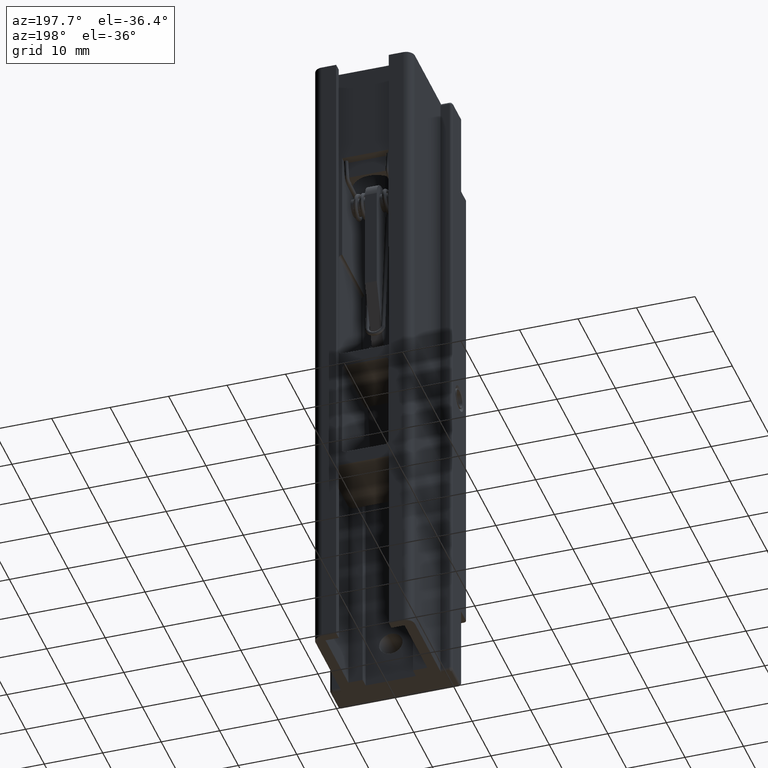
[diagram: clean part render]
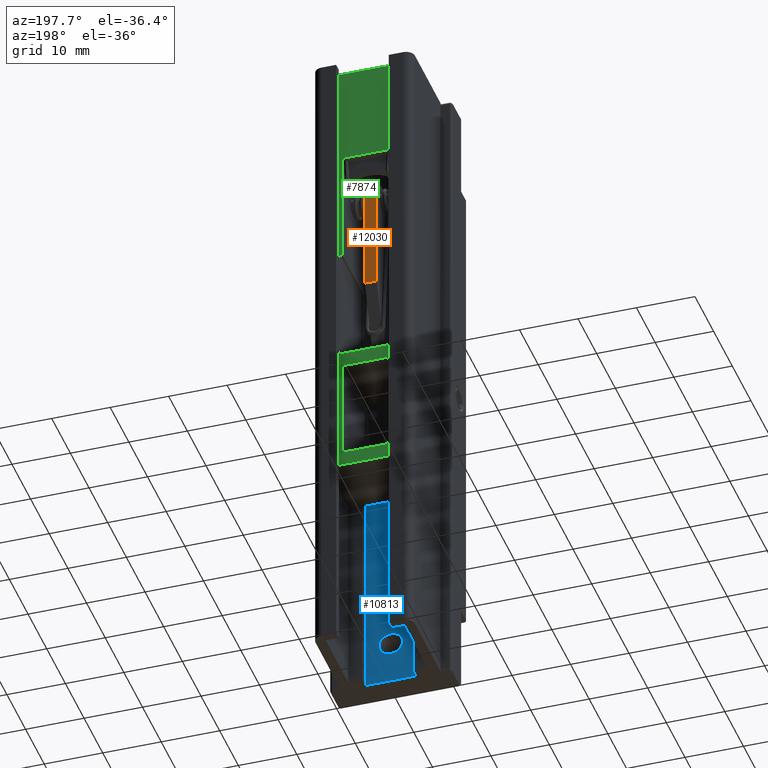
[diagram: same view with three faces highlighted in distinct colors, each labeled with its STEP entity id]
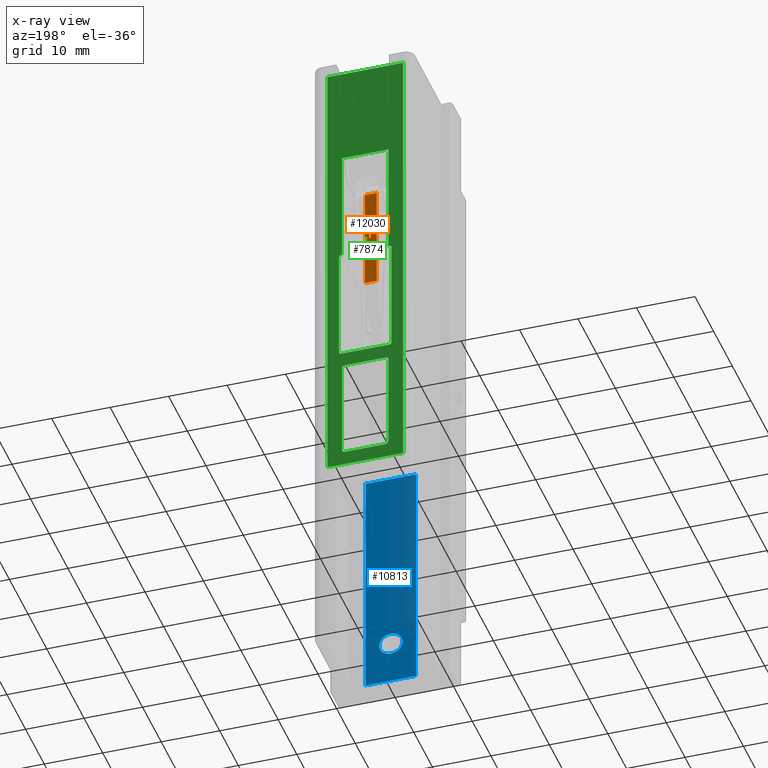
[diagram: x-ray of the same camera — body ghosted, the three highlighted faces saturated]
A machine part, auxiliary view with three faces highlighted in distinct colors.
The next image is the same camera in x-ray (body ghosted, the three faces saturated) — at least one of them is partly hidden behind the body in this view.
Their STEP definitions:

[orange] entity #12030 — the highlighted face is a freeform B-spline surface patch.
#11980=CARTESIAN_POINT('',(-1.0,3.0,15.698478499999901));
#11981=VERTEX_POINT('',#11980);
#11987=CARTESIAN_POINT('',(1.0,3.0,15.698478499999901));
#11988=VERTEX_POINT('',#11987);
#11989=CARTESIAN_POINT('',(1.0,3.0,15.698478499999901));
#11990=CARTESIAN_POINT('',(-1.0,3.0,15.698478499999901));
#11991=QUASI_UNIFORM_CURVE('',1,(#11989,#11990),.UNSPECIFIED.,.F.,.U.);
#11992=EDGE_CURVE('',#11988,#11981,#11991,.T.);
#12003=CARTESIAN_POINT('',(-1.099899996123612,3.0,34.389185964422197));
#12004=CARTESIAN_POINT('',(-1.099899996123612,3.0,14.809292058103690));
#12005=CARTESIAN_POINT('',(1.099900049767792,3.0,34.389185964422197));
#12006=CARTESIAN_POINT('',(1.099900049767792,3.0,14.809292058103690));
#12007=B_SPLINE_SURFACE_WITH_KNOTS('',1,1,((#12003,#12005),(#12004,#12006)),.UNSPECIFIED.,.F.,.F.,.U.,(2,2),(2,2),(0.0,19.579893906318510),(0.0,2.199800045891404),.UNSPECIFIED.);
#12008=CARTESIAN_POINT('',(-1.0,3.0,33.500000000000000));
#12009=VERTEX_POINT('',#12008);
#12010=CARTESIAN_POINT('',(-1.0,3.0,15.698478499999901));
#12011=CARTESIAN_POINT('',(-1.0,3.0,33.500000000000000));
#12012=QUASI_UNIFORM_CURVE('',1,(#12010,#12011),.UNSPECIFIED.,.F.,.U.);
#12013=EDGE_CURVE('',#11981,#12009,#12012,.T.);
#12014=ORIENTED_EDGE('',*,*,#12013,.T.);
#12015=CARTESIAN_POINT('',(1.0,3.0,33.500000000000000));
#12016=VERTEX_POINT('',#12015);
#12017=CARTESIAN_POINT('',(1.0,3.0,33.500000000000000));
#12018=CARTESIAN_POINT('',(-1.0,3.0,33.500000000000000));
#12019=QUASI_UNIFORM_CURVE('',1,(#12017,#12018),.UNSPECIFIED.,.F.,.U.);
#12020=EDGE_CURVE('',#12016,#12009,#12019,.T.);
#12021=ORIENTED_EDGE('',*,*,#12020,.F.);
#12022=CARTESIAN_POINT('',(1.0,3.0,15.698478499999901));
#12023=CARTESIAN_POINT('',(1.0,3.0,33.500000000000000));
#12024=QUASI_UNIFORM_CURVE('',1,(#12022,#12023),.UNSPECIFIED.,.F.,.U.);
#12025=EDGE_CURVE('',#11988,#12016,#12024,.T.);
#12026=ORIENTED_EDGE('',*,*,#12025,.F.);
#12027=ORIENTED_EDGE('',*,*,#11992,.T.);
#12028=EDGE_LOOP('',(#12014,#12021,#12026,#12027));
#12029=FACE_OUTER_BOUND('',#12028,.T.);
#12030=ADVANCED_FACE('',(#12029),#12007,.F.);

[blue] entity #10813 — the highlighted face is a freeform B-spline surface patch.
#8842=CARTESIAN_POINT('',(1.996269596838308,-7.700000000000150,-50.122097079158408));
#8843=VERTEX_POINT('',#8842);
#8849=CARTESIAN_POINT('',(0.0,-7.700000000000150,-52.000000000000007));
#8850=VERTEX_POINT('',#8849);
#8851=CARTESIAN_POINT('',(0.0,-7.700000000000150,-52.000000000000007));
#8852=CARTESIAN_POINT('',(1.881412133643885,-7.700000000000149,-52.000000000000028));
#8853=CARTESIAN_POINT('',(1.996269596838308,-7.700000000000150,-50.122097079158408));
#8861=(BOUNDED_CURVE()B_SPLINE_CURVE(2,(#8851,#8852,#8853),.UNSPECIFIED.,.F.,.U.)B_SPLINE_CURVE_WITH_KNOTS((3,3),(0.500000000000000,0.739332962226635),.UNSPECIFIED.)CURVE()GEOMETRIC_REPRESENTATION_ITEM()RATIONAL_B_SPLINE_CURVE((1.0,0.719603993301130,0.976072041640339))REPRESENTATION_ITEM(''));
#8862=EDGE_CURVE('',#8850,#8843,#8861,.T.);
#8864=CARTESIAN_POINT('',(-1.986019044598978,-7.700000000000149,-49.763931462303511));
#8865=VERTEX_POINT('',#8864);
#8866=CARTESIAN_POINT('',(-1.986019044598978,-7.700000000000149,-49.763931462303503));
#8867=CARTESIAN_POINT('',(-2.000000000000000,-7.700000000000149,-49.881551691590275));
#8868=CARTESIAN_POINT('',(-2.0,-7.700000000000150,-50.0));
#8869=CARTESIAN_POINT('',(-2.000000000000000,-7.700000000000150,-52.000000000000007));
#8870=CARTESIAN_POINT('',(0.0,-7.700000000000150,-52.000000000000007));
#8878=(BOUNDED_CURVE()B_SPLINE_CURVE(2,(#8866,#8867,#8868,#8869,#8870),.UNSPECIFIED.,.F.,.U.)B_SPLINE_CURVE_WITH_KNOTS((3,2,3),(0.229562461877343,0.250000000000000,0.500000000000000),.UNSPECIFIED.)CURVE()GEOMETRIC_REPRESENTATION_ITEM()RATIONAL_B_SPLINE_CURVE((0.956026731376340,0.976055934698529,1.0,0.707106781186548,1.0))REPRESENTATION_ITEM(''));
#8879=EDGE_CURVE('',#8865,#8850,#8878,.T.);
#8923=CARTESIAN_POINT('',(0.0,-7.700000000000150,-48.0));
#8924=VERTEX_POINT('',#8923);
#8925=CARTESIAN_POINT('',(0.0,-7.700000000000150,-48.0));
#8926=CARTESIAN_POINT('',(-1.776348928714444,-7.700000000000150,-48.000000000000007));
#8927=CARTESIAN_POINT('',(-1.986019044598978,-7.700000000000149,-49.763931462303511));
#8935=(BOUNDED_CURVE()B_SPLINE_CURVE(2,(#8925,#8926,#8927),.UNSPECIFIED.,.F.,.U.)B_SPLINE_CURVE_WITH_KNOTS((3,3),(0.0,0.229562461877343),.UNSPECIFIED.)CURVE()GEOMETRIC_REPRESENTATION_ITEM()RATIONAL_B_SPLINE_CURVE((1.0,0.731050846488018,0.956026731376340))REPRESENTATION_ITEM(''));
#8936=EDGE_CURVE('',#8924,#8865,#8935,.T.);
#8938=CARTESIAN_POINT('',(1.996269596838308,-7.700000000000150,-50.122097079158408));
#8939=CARTESIAN_POINT('',(2.0,-7.700000000000149,-50.061105526686127));
#8940=CARTESIAN_POINT('',(2.0,-7.700000000000150,-50.0));
#8941=CARTESIAN_POINT('',(2.000000000000000,-7.700000000000150,-48.000000000000014));
#8942=CARTESIAN_POINT('',(0.0,-7.700000000000150,-48.0));
#8950=(BOUNDED_CURVE()B_SPLINE_CURVE(2,(#8938,#8939,#8940,#8941,#8942),.UNSPECIFIED.,.F.,.U.)B_SPLINE_CURVE_WITH_KNOTS((3,2,3),(0.739332962226635,0.750000000000000,1.0),.UNSPECIFIED.)CURVE()GEOMETRIC_REPRESENTATION_ITEM()RATIONAL_B_SPLINE_CURVE((0.976072041640339,0.987502787885417,1.0,0.707106781186548,1.0))REPRESENTATION_ITEM(''));
#8951=EDGE_CURVE('',#8843,#8924,#8950,.T.);
#10015=CARTESIAN_POINT('',(-4.300000000000110,-7.700000000000000,-16.699999999999999));
#10016=VERTEX_POINT('',#10015);
#10023=CARTESIAN_POINT('',(4.300000000000000,-7.700000000000000,-16.699999999999999));
#10024=VERTEX_POINT('',#10023);
#10030=CARTESIAN_POINT('',(-4.300000000000110,-7.700000000000000,-16.699999999999999));
#10031=CARTESIAN_POINT('',(4.300000000000000,-7.700000000000000,-16.699999999999999));
#10032=QUASI_UNIFORM_CURVE('',1,(#10030,#10031),.UNSPECIFIED.,.F.,.U.);
#10033=EDGE_CURVE('',#10016,#10024,#10032,.T.);
#10719=CARTESIAN_POINT('',(4.300000000000000,-7.700000000000000,-57.500000000000000));
#10720=VERTEX_POINT('',#10719);
#10721=CARTESIAN_POINT('',(4.300000000000000,-7.700000000000000,-57.500000000000000));
#10722=CARTESIAN_POINT('',(4.300000000000000,-7.700000000000000,-16.699999999999999));
#10723=QUASI_UNIFORM_CURVE('',1,(#10721,#10722),.UNSPECIFIED.,.F.,.U.);
#10724=EDGE_CURVE('',#10720,#10024,#10723,.T.);
#10786=CARTESIAN_POINT('',(-4.729570225523588,-7.700000000000000,-14.662040845080741));
#10787=CARTESIAN_POINT('',(-4.729570225523588,-7.700000000000000,-59.537960978821403));
#10788=CARTESIAN_POINT('',(4.729570225523478,-7.700000000000000,-14.662040845080741));
#10789=CARTESIAN_POINT('',(4.729570225523478,-7.700000000000000,-59.537960978821403));
#10790=B_SPLINE_SURFACE_WITH_KNOTS('',1,1,((#10786,#10788),(#10787,#10789)),.UNSPECIFIED.,.F.,.F.,.U.,(2,2),(2,2),(0.0,44.875920133740657),(0.0,9.459140451047066),.UNSPECIFIED.);
#10791=CARTESIAN_POINT('',(-4.300000000000110,-7.700000000000000,-57.500000000000000));
#10792=VERTEX_POINT('',#10791);
#10793=CARTESIAN_POINT('',(-4.300000000000110,-7.700000000000000,-57.500000000000000));
#10794=CARTESIAN_POINT('',(-4.300000000000110,-7.700000000000000,-16.699999999999999));
#10795=QUASI_UNIFORM_CURVE('',1,(#10793,#10794),.UNSPECIFIED.,.F.,.U.);
#10796=EDGE_CURVE('',#10792,#10016,#10795,.T.);
#10797=ORIENTED_EDGE('',*,*,#10796,.T.);
#10798=ORIENTED_EDGE('',*,*,#10033,.T.);
#10799=ORIENTED_EDGE('',*,*,#10724,.F.);
#10800=CARTESIAN_POINT('',(-4.300000000000110,-7.700000000000000,-57.500000000000000));
#10801=CARTESIAN_POINT('',(4.300000000000000,-7.700000000000000,-57.500000000000000));
#10802=QUASI_UNIFORM_CURVE('',1,(#10800,#10801),.UNSPECIFIED.,.F.,.U.);
#10803=EDGE_CURVE('',#10792,#10720,#10802,.T.);
#10804=ORIENTED_EDGE('',*,*,#10803,.F.);
#10805=EDGE_LOOP('',(#10797,#10798,#10799,#10804));
#10806=FACE_OUTER_BOUND('',#10805,.T.);
#10807=ORIENTED_EDGE('',*,*,#8862,.T.);
#10808=ORIENTED_EDGE('',*,*,#8951,.T.);
#10809=ORIENTED_EDGE('',*,*,#8936,.T.);
#10810=ORIENTED_EDGE('',*,*,#8879,.T.);
#10811=EDGE_LOOP('',(#10807,#10808,#10809,#10810));
#10812=FACE_BOUND('',#10811,.T.);
#10813=ADVANCED_FACE('',(#10806,#10812),#10790,.F.);

[green] entity #7874 — the highlighted face is a freeform B-spline surface patch.
#6790=CARTESIAN_POINT('',(3.950000000000000,6.0,39.500000000000000));
#6791=VERTEX_POINT('',#6790);
#6798=CARTESIAN_POINT('',(-3.950000000000000,6.0,39.500000000000000));
#6799=VERTEX_POINT('',#6798);
#6805=CARTESIAN_POINT('',(3.950000000000000,6.0,39.500000000000000));
#6806=CARTESIAN_POINT('',(-3.950000000000000,6.0,39.500000000000000));
#6807=QUASI_UNIFORM_CURVE('',1,(#6805,#6806),.UNSPECIFIED.,.F.,.U.);
#6808=EDGE_CURVE('',#6791,#6799,#6807,.T.);
#6846=CARTESIAN_POINT('',(3.449999999999875,6.0,-2.500000000000000));
#6847=VERTEX_POINT('',#6846);
#6848=CARTESIAN_POINT('',(-3.450000000000000,6.0,-2.499999999999945));
#6849=VERTEX_POINT('',#6848);
#6850=CARTESIAN_POINT('',(3.449999999999875,6.0,-2.500000000000000));
#6851=CARTESIAN_POINT('',(-3.450000000000000,6.0,-2.499999999999945));
#6852=QUASI_UNIFORM_CURVE('',1,(#6850,#6851),.UNSPECIFIED.,.F.,.U.);
#6853=EDGE_CURVE('',#6847,#6849,#6852,.T.);
#6891=CARTESIAN_POINT('',(3.950000000000000,6.0,-3.0));
#6892=VERTEX_POINT('',#6891);
#6893=CARTESIAN_POINT('',(3.950000000000000,6.0,-3.0));
#6894=CARTESIAN_POINT('',(3.949999999999876,6.0,-2.500000000000000));
#6895=CARTESIAN_POINT('',(3.449999999999875,6.0,-2.500000000000000));
#6903=(BOUNDED_CURVE()B_SPLINE_CURVE(2,(#6893,#6894,#6895),.UNSPECIFIED.,.F.,.U.)CURVE()GEOMETRIC_REPRESENTATION_ITEM()QUASI_UNIFORM_CURVE()RATIONAL_B_SPLINE_CURVE((1.0,0.707106781186548,1.0))REPRESENTATION_ITEM(''));
#6904=EDGE_CURVE('',#6892,#6847,#6903,.T.);
#6935=CARTESIAN_POINT('',(3.949999999999875,6.0,-19.500000000000000));
#6936=VERTEX_POINT('',#6935);
#6937=CARTESIAN_POINT('',(3.949999999999875,6.0,-19.500000000000000));
#6938=CARTESIAN_POINT('',(3.950000000000000,6.0,-3.0));
#6939=QUASI_UNIFORM_CURVE('',1,(#6937,#6938),.UNSPECIFIED.,.F.,.U.);
#6940=EDGE_CURVE('',#6936,#6892,#6939,.T.);
#6972=CARTESIAN_POINT('',(3.449999999999875,6.0,-20.0));
#6973=VERTEX_POINT('',#6972);
#6974=CARTESIAN_POINT('',(3.449999999999875,6.0,-20.0));
#6975=CARTESIAN_POINT('',(3.949999999999876,6.0,-19.999999999999996));
#6976=CARTESIAN_POINT('',(3.949999999999875,6.0,-19.500000000000000));
#6984=(BOUNDED_CURVE()B_SPLINE_CURVE(2,(#6974,#6975,#6976),.UNSPECIFIED.,.F.,.U.)CURVE()GEOMETRIC_REPRESENTATION_ITEM()QUASI_UNIFORM_CURVE()RATIONAL_B_SPLINE_CURVE((1.0,0.707106781186548,1.0))REPRESENTATION_ITEM(''));
#6985=EDGE_CURVE('',#6973,#6936,#6984,.T.);
#7016=CARTESIAN_POINT('',(-3.450000000000000,6.0,-20.0));
#7017=VERTEX_POINT('',#7016);
#7018=CARTESIAN_POINT('',(-3.450000000000000,6.0,-20.0));
#7019=CARTESIAN_POINT('',(3.449999999999875,6.0,-20.0));
#7020=QUASI_UNIFORM_CURVE('',1,(#7018,#7019),.UNSPECIFIED.,.F.,.U.);
#7021=EDGE_CURVE('',#7017,#6973,#7020,.T.);
#7053=CARTESIAN_POINT('',(-3.950000000000000,6.0,-19.500000000000000));
#7054=VERTEX_POINT('',#7053);
#7055=CARTESIAN_POINT('',(-3.950000000000000,6.0,-19.500000000000000));
#7056=CARTESIAN_POINT('',(-3.950000000000000,6.0,-19.999999999999996));
#7057=CARTESIAN_POINT('',(-3.450000000000000,6.0,-20.0));
#7065=(BOUNDED_CURVE()B_SPLINE_CURVE(2,(#7055,#7056,#7057),.UNSPECIFIED.,.F.,.U.)CURVE()GEOMETRIC_REPRESENTATION_ITEM()QUASI_UNIFORM_CURVE()RATIONAL_B_SPLINE_CURVE((1.0,0.707106781186548,1.0))REPRESENTATION_ITEM(''));
#7066=EDGE_CURVE('',#7054,#7017,#7065,.T.);
#7097=CARTESIAN_POINT('',(-3.950000000000000,6.0,-3.0));
#7098=VERTEX_POINT('',#7097);
#7099=CARTESIAN_POINT('',(-3.950000000000000,6.0,-3.0));
#7100=CARTESIAN_POINT('',(-3.950000000000000,6.0,-19.500000000000000));
#7101=QUASI_UNIFORM_CURVE('',1,(#7099,#7100),.UNSPECIFIED.,.F.,.U.);
#7102=EDGE_CURVE('',#7098,#7054,#7101,.T.);
#7134=CARTESIAN_POINT('',(-3.450000000000000,6.0,-2.499999999999945));
#7135=CARTESIAN_POINT('',(-3.950000000000000,6.0,-2.500000000000000));
#7136=CARTESIAN_POINT('',(-3.950000000000000,6.0,-3.0));
#7144=(BOUNDED_CURVE()B_SPLINE_CURVE(2,(#7134,#7135,#7136),.UNSPECIFIED.,.F.,.U.)CURVE()GEOMETRIC_REPRESENTATION_ITEM()QUASI_UNIFORM_CURVE()RATIONAL_B_SPLINE_CURVE((1.0,0.707106781186548,1.0))REPRESENTATION_ITEM(''));
#7145=EDGE_CURVE('',#6849,#7098,#7144,.T.);
#7209=CARTESIAN_POINT('',(-3.950000004144060,6.0,19.997493718969800));
#7210=VERTEX_POINT('',#7209);
#7216=CARTESIAN_POINT('',(-3.950000004144060,6.0,19.997493718969800));
#7217=CARTESIAN_POINT('',(-3.950000000000000,6.0,39.500000000000000));
#7218=QUASI_UNIFORM_CURVE('',1,(#7216,#7217),.UNSPECIFIED.,.F.,.U.);
#7219=EDGE_CURVE('',#7210,#6799,#7218,.T.);
#7246=CARTESIAN_POINT('',(-4.500000000000110,6.0,19.500000000000000));
#7247=VERTEX_POINT('',#7246);
#7248=CARTESIAN_POINT('',(-3.950000004144060,6.0,19.997493718969800));
#7249=CARTESIAN_POINT('',(-4.170820396338739,6.000000000000001,20.019687001565419));
#7250=CARTESIAN_POINT('',(-4.335410198169369,6.0,19.870809922957822));
#7251=CARTESIAN_POINT('',(-4.500000000000001,6.000000000000001,19.721932844350224));
#7252=CARTESIAN_POINT('',(-4.500000000000110,6.0,19.500000000000000));
#7260=(BOUNDED_CURVE()B_SPLINE_CURVE(2,(#7248,#7249,#7250,#7251,#7252),.UNSPECIFIED.,.F.,.U.)B_SPLINE_CURVE_WITH_KNOTS((3,2,3),(0.0,0.500000000000000,1.0),.UNSPECIFIED.)CURVE()GEOMETRIC_REPRESENTATION_ITEM()RATIONAL_B_SPLINE_CURVE((1.0,0.914007767018076,1.0,0.914007767018076,1.0))REPRESENTATION_ITEM(''));
#7261=EDGE_CURVE('',#7210,#7247,#7260,.T.);
#7294=CARTESIAN_POINT('',(-4.500000000000000,6.0,0.500000000000000));
#7295=VERTEX_POINT('',#7294);
#7296=CARTESIAN_POINT('',(-4.500000000000000,6.0,0.500000000000000));
#7297=CARTESIAN_POINT('',(-4.500000000000110,6.0,19.500000000000000));
#7298=QUASI_UNIFORM_CURVE('',1,(#7296,#7297),.UNSPECIFIED.,.F.,.U.);
#7299=EDGE_CURVE('',#7295,#7247,#7298,.T.);
#7331=CARTESIAN_POINT('',(-4.0,6.0,0.0));
#7332=VERTEX_POINT('',#7331);
#7333=CARTESIAN_POINT('',(-4.500000000000001,6.0,0.500000000000000));
#7334=CARTESIAN_POINT('',(-4.500000000000002,6.0,0.0));
#7335=CARTESIAN_POINT('',(-4.0,6.0,0.0));
#7343=(BOUNDED_CURVE()B_SPLINE_CURVE(2,(#7333,#7334,#7335),.UNSPECIFIED.,.F.,.U.)CURVE()GEOMETRIC_REPRESENTATION_ITEM()QUASI_UNIFORM_CURVE()RATIONAL_B_SPLINE_CURVE((1.0,0.707106781186548,1.0))REPRESENTATION_ITEM(''));
#7344=EDGE_CURVE('',#7295,#7332,#7343,.T.);
#7375=CARTESIAN_POINT('',(4.0,6.0,0.0));
#7376=VERTEX_POINT('',#7375);
#7377=CARTESIAN_POINT('',(4.0,6.0,0.0));
#7378=CARTESIAN_POINT('',(-4.0,6.0,0.0));
#7379=QUASI_UNIFORM_CURVE('',1,(#7377,#7378),.UNSPECIFIED.,.F.,.U.);
#7380=EDGE_CURVE('',#7376,#7332,#7379,.T.);
#7412=CARTESIAN_POINT('',(4.500000000000000,6.0,0.500000000000000));
#7413=VERTEX_POINT('',#7412);
#7414=CARTESIAN_POINT('',(4.0,6.0,0.0));
#7415=CARTESIAN_POINT('',(4.500000000000002,6.0,0.0));
#7416=CARTESIAN_POINT('',(4.500000000000001,6.0,0.500000000000000));
#7424=(BOUNDED_CURVE()B_SPLINE_CURVE(2,(#7414,#7415,#7416),.UNSPECIFIED.,.F.,.U.)CURVE()GEOMETRIC_REPRESENTATION_ITEM()QUASI_UNIFORM_CURVE()RATIONAL_B_SPLINE_CURVE((1.0,0.707106781186548,1.0))REPRESENTATION_ITEM(''));
#7425=EDGE_CURVE('',#7376,#7413,#7424,.T.);
#7456=CARTESIAN_POINT('',(4.500000000000000,6.0,19.500000000000000));
#7457=VERTEX_POINT('',#7456);
#7458=CARTESIAN_POINT('',(4.500000000000000,6.0,19.500000000000000));
#7459=CARTESIAN_POINT('',(4.500000000000000,6.0,0.500000000000000));
#7460=QUASI_UNIFORM_CURVE('',1,(#7458,#7459),.UNSPECIFIED.,.F.,.U.);
#7461=EDGE_CURVE('',#7457,#7413,#7460,.T.);
#7493=CARTESIAN_POINT('',(3.950000004144060,6.0,19.997493718969800));
#7494=VERTEX_POINT('',#7493);
#7495=CARTESIAN_POINT('',(4.500000000000001,6.0,19.500000000000000));
#7496=CARTESIAN_POINT('',(4.500000000000001,6.0,19.721932844350228));
#7497=CARTESIAN_POINT('',(4.335410198169369,6.0,19.870809922957822));
#7498=CARTESIAN_POINT('',(4.170820396338738,6.0,20.019687001565423));
#7499=CARTESIAN_POINT('',(3.950000004144060,6.0,19.997493718969810));
#7507=(BOUNDED_CURVE()B_SPLINE_CURVE(2,(#7495,#7496,#7497,#7498,#7499),.UNSPECIFIED.,.F.,.U.)B_SPLINE_CURVE_WITH_KNOTS((3,2,3),(0.0,0.500000000000000,1.0),.UNSPECIFIED.)CURVE()GEOMETRIC_REPRESENTATION_ITEM()RATIONAL_B_SPLINE_CURVE((1.0,0.914007767018075,1.0,0.914007767018075,1.0))REPRESENTATION_ITEM(''));
#7508=EDGE_CURVE('',#7457,#7494,#7507,.T.);
#7550=CARTESIAN_POINT('',(3.950000000000000,6.0,39.500000000000000));
#7551=CARTESIAN_POINT('',(3.950000004144060,6.0,19.997493718969800));
#7552=QUASI_UNIFORM_CURVE('',1,(#7550,#7551),.UNSPECIFIED.,.F.,.U.);
#7553=EDGE_CURVE('',#6791,#7494,#7552,.T.);
#7571=CARTESIAN_POINT('',(6.499999999999900,6.0,56.500000000000000));
#7572=VERTEX_POINT('',#7571);
#7573=CARTESIAN_POINT('',(-6.500000000000000,6.0,56.500000000000000));
#7574=VERTEX_POINT('',#7573);
#7575=CARTESIAN_POINT('',(6.499999999999900,6.0,56.500000000000000));
#7576=CARTESIAN_POINT('',(-6.500000000000000,6.0,56.500000000000000));
#7577=QUASI_UNIFORM_CURVE('',1,(#7575,#7576),.UNSPECIFIED.,.F.,.U.);
#7578=EDGE_CURVE('',#7572,#7574,#7577,.T.);
#7643=CARTESIAN_POINT('',(6.499999999999900,6.0,-22.500000000000000));
#7644=VERTEX_POINT('',#7643);
#7645=CARTESIAN_POINT('',(-6.500000000000000,6.0,-22.500000000000000));
#7646=VERTEX_POINT('',#7645);
#7647=CARTESIAN_POINT('',(6.499999999999900,6.0,-22.500000000000000));
#7648=CARTESIAN_POINT('',(-6.500000000000000,6.0,-22.500000000000000));
#7649=QUASI_UNIFORM_CURVE('',1,(#7647,#7648),.UNSPECIFIED.,.F.,.U.);
#7650=EDGE_CURVE('',#7644,#7646,#7649,.T.);
#7716=CARTESIAN_POINT('',(6.499999999999900,6.0,-22.500000000000000));
#7717=CARTESIAN_POINT('',(6.499999999999900,6.0,56.500000000000000));
#7718=QUASI_UNIFORM_CURVE('',1,(#7716,#7717),.UNSPECIFIED.,.F.,.U.);
#7719=EDGE_CURVE('',#7644,#7572,#7718,.T.);
#7784=CARTESIAN_POINT('',(-6.500000000000000,6.0,-22.500000000000000));
#7785=CARTESIAN_POINT('',(-6.500000000000000,6.0,56.500000000000000));
#7786=QUASI_UNIFORM_CURVE('',1,(#7784,#7785),.UNSPECIFIED.,.F.,.U.);
#7787=EDGE_CURVE('',#7646,#7574,#7786,.T.);
#7841=CARTESIAN_POINT('',(-7.149349974803474,6.0,-26.446049846882669));
#7842=CARTESIAN_POINT('',(-7.149349974803474,6.0,60.446051965827813));
#7843=CARTESIAN_POINT('',(7.149350323490544,6.0,-26.446049846882669));
#7844=CARTESIAN_POINT('',(7.149350323490544,6.0,60.446051965827799));
#7845=B_SPLINE_SURFACE_WITH_KNOTS('',1,1,((#7841,#7843),(#7842,#7844)),.UNSPECIFIED.,.F.,.F.,.U.,(2,2),(2,2),(0.0,86.892101812710479),(0.0,14.298700298294021),.UNSPECIFIED.);
#7846=ORIENTED_EDGE('',*,*,#7578,.F.);
#7847=ORIENTED_EDGE('',*,*,#7719,.F.);
#7848=ORIENTED_EDGE('',*,*,#7650,.T.);
#7849=ORIENTED_EDGE('',*,*,#7787,.T.);
#7850=EDGE_LOOP('',(#7846,#7847,#7848,#7849));
#7851=FACE_OUTER_BOUND('',#7850,.T.);
#7852=ORIENTED_EDGE('',*,*,#6853,.T.);
#7853=ORIENTED_EDGE('',*,*,#7145,.T.);
#7854=ORIENTED_EDGE('',*,*,#7102,.T.);
#7855=ORIENTED_EDGE('',*,*,#7066,.T.);
#7856=ORIENTED_EDGE('',*,*,#7021,.T.);
#7857=ORIENTED_EDGE('',*,*,#6985,.T.);
#7858=ORIENTED_EDGE('',*,*,#6940,.T.);
#7859=ORIENTED_EDGE('',*,*,#6904,.T.);
#7860=EDGE_LOOP('',(#7852,#7853,#7854,#7855,#7856,#7857,#7858,#7859));
#7861=FACE_BOUND('',#7860,.T.);
#7862=ORIENTED_EDGE('',*,*,#6808,.T.);
#7863=ORIENTED_EDGE('',*,*,#7219,.F.);
#7864=ORIENTED_EDGE('',*,*,#7261,.T.);
#7865=ORIENTED_EDGE('',*,*,#7299,.F.);
#7866=ORIENTED_EDGE('',*,*,#7344,.T.);
#7867=ORIENTED_EDGE('',*,*,#7380,.F.);
#7868=ORIENTED_EDGE('',*,*,#7425,.T.);
#7869=ORIENTED_EDGE('',*,*,#7461,.F.);
#7870=ORIENTED_EDGE('',*,*,#7508,.T.);
#7871=ORIENTED_EDGE('',*,*,#7553,.F.);
#7872=EDGE_LOOP('',(#7862,#7863,#7864,#7865,#7866,#7867,#7868,#7869,#7870,#7871));
#7873=FACE_BOUND('',#7872,.T.);
#7874=ADVANCED_FACE('',(#7851,#7861,#7873),#7845,.T.);